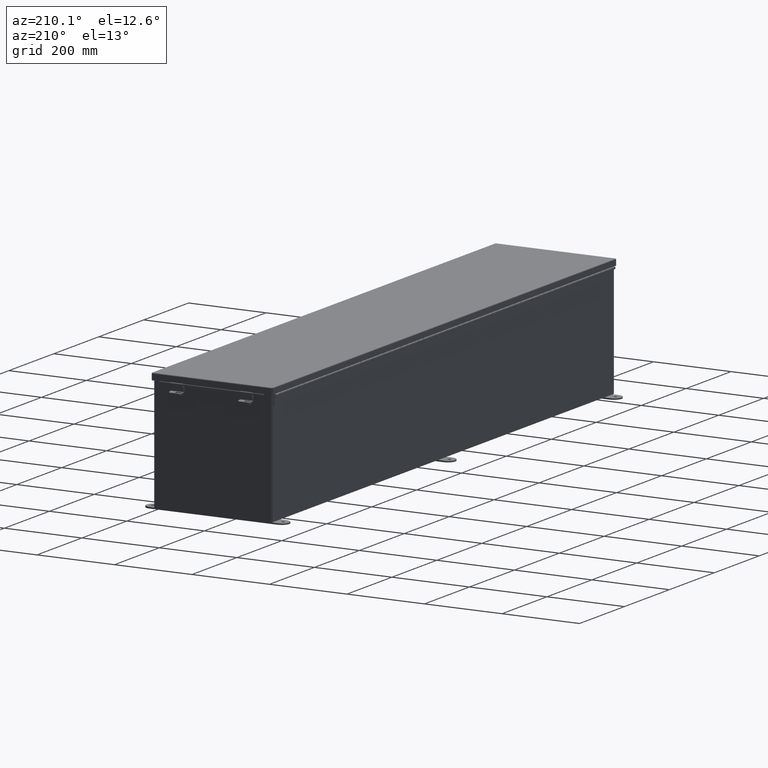
[diagram: clean part render]
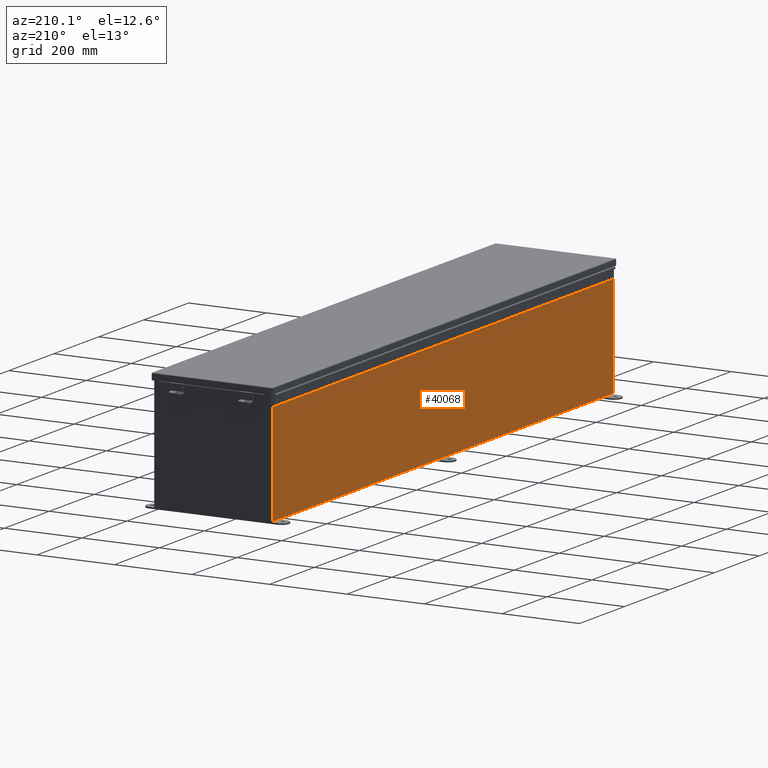
[diagram: same view with one face highlighted and labeled with its STEP entity id]
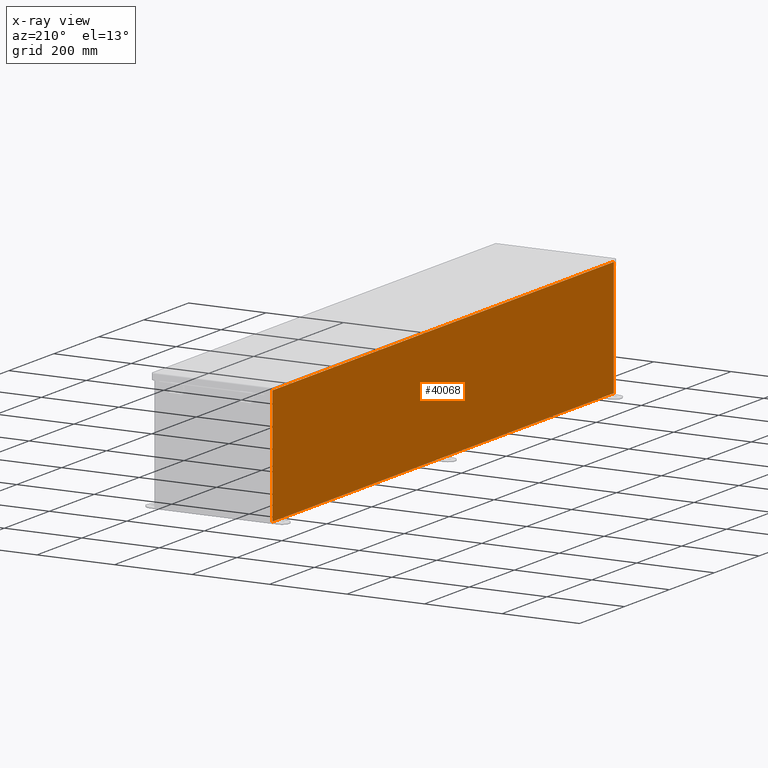
[diagram: x-ray of the same camera — body ghosted, the highlighted face saturated]
A machine part, auxiliary view. The second image highlights one B-rep face of the part: STEP entity #40068.
The next image is the same camera in x-ray: the body ghosted, the highlighted face saturated — about 0% of this face is hidden behind the body in this view.
In plain terms, the highlighted planar face has unit normal (1, 0, 0).
Its self-contained STEP definition (entity closure, byte-faithful):
#126 = VERTEX_POINT ( 'NONE', #13696 ) ;
#2456 = ORIENTED_EDGE ( 'NONE', *, *, #15982, .F. ) ;
#2773 = AXIS2_PLACEMENT_3D ( 'NONE', #35279, #18597, #42194 ) ;
#2823 = DIRECTION ( 'NONE',  ( 3.503965158194252100E-015, 0.0000000000000000000, -1.000000000000000000 ) ) ;
#4593 = VERTEX_POINT ( 'NONE', #28202 ) ;
#4963 = CARTESIAN_POINT ( 'NONE',  ( -6.000000000000041700, -29.92529999999996800, 11.83759999999999800 ) ) ;
#8286 = PLANE ( 'NONE',  #2773 ) ;
#8950 = VECTOR ( 'NONE', #42149, 39.37007874015748100 ) ;
#9065 = FACE_OUTER_BOUND ( 'NONE', #32555, .T. ) ;
#13696 = CARTESIAN_POINT ( 'NONE',  ( -6.000000000000043500, 29.92530000000000400, 11.83759999999999800 ) ) ;
#15982 = EDGE_CURVE ( 'NONE', #28897, #31154, #37745, .T. ) ;
#16823 = LINE ( 'NONE', #4963, #8950 ) ;
#17678 = ORIENTED_EDGE ( 'NONE', *, *, #27585, .T. ) ;
#18597 = DIRECTION ( 'NONE',  ( 1.000000000000000000, 0.0000000000000000000, 3.503965158194251300E-015 ) ) ;
#22179 = CARTESIAN_POINT ( 'NONE',  ( -6.000000000000001800, 29.92530000000000400, 0.01300000000000093600 ) ) ;
#22416 = LINE ( 'NONE', #23718, #29288 ) ;
#23718 = CARTESIAN_POINT ( 'NONE',  ( -6.000000000000001800, -29.92529999999997200, 7.939433231586765000E-016 ) ) ;
#25204 = EDGE_CURVE ( 'NONE', #28897, #4593, #22416, .T. ) ;
#26454 = CARTESIAN_POINT ( 'NONE',  ( -6.000000000000001800, 29.92530000000000700, -2.128280327564064900E-014 ) ) ;
#27502 = CARTESIAN_POINT ( 'NONE',  ( -6.000000000000001800, -29.92529999999997200, 0.01300000000000202700 ) ) ;
#27585 = EDGE_CURVE ( 'NONE', #126, #31154, #42777, .T. ) ;
#28202 = CARTESIAN_POINT ( 'NONE',  ( -6.000000000000041700, -29.92529999999996800, 11.83759999999999800 ) ) ;
#28502 = EDGE_CURVE ( 'NONE', #4593, #126, #16823, .T. ) ;
#28783 = VECTOR ( 'NONE', #39763, 39.37007874015748100 ) ;
#28897 = VERTEX_POINT ( 'NONE', #27502 ) ;
#29288 = VECTOR ( 'NONE', #33898, 39.37007874015748100 ) ;
#31154 = VERTEX_POINT ( 'NONE', #22179 ) ;
#32555 = EDGE_LOOP ( 'NONE', ( #42603, #17678, #2456, #43714 ) ) ;
#33898 = DIRECTION ( 'NONE',  ( -3.503965158194252100E-015, 7.376768754093162200E-016, 1.000000000000000000 ) ) ;
#35279 = CARTESIAN_POINT ( 'NONE',  ( -6.000000000000001800, 0.0000000000000000000, -2.128280327564064900E-014 ) ) ;
#37745 = LINE ( 'NONE', #43162, #28783 ) ;
#39763 = DIRECTION ( 'NONE',  ( 1.279492628282082900E-031, 1.000000000000000000, -3.651556366905948500E-017 ) ) ;
#40068 = ADVANCED_FACE ( 'NONE', ( #9065 ), #8286, .F. ) ;
#41730 = VECTOR ( 'NONE', #2823, 39.37007874015748100 ) ;
#42149 = DIRECTION ( 'NONE',  ( 0.0000000000000000000, 1.000000000000000000, 0.0000000000000000000 ) ) ;
#42194 = DIRECTION ( 'NONE',  ( 3.503965158194251300E-015, 0.0000000000000000000, -1.000000000000000000 ) ) ;
#42603 = ORIENTED_EDGE ( 'NONE', *, *, #28502, .T. ) ;
#42777 = LINE ( 'NONE', #26454, #41730 ) ;
#43162 = CARTESIAN_POINT ( 'NONE',  ( -6.000000000000001800, 29.92530000000000700, 0.01299999999999984300 ) ) ;
#43714 = ORIENTED_EDGE ( 'NONE', *, *, #25204, .T. ) ;